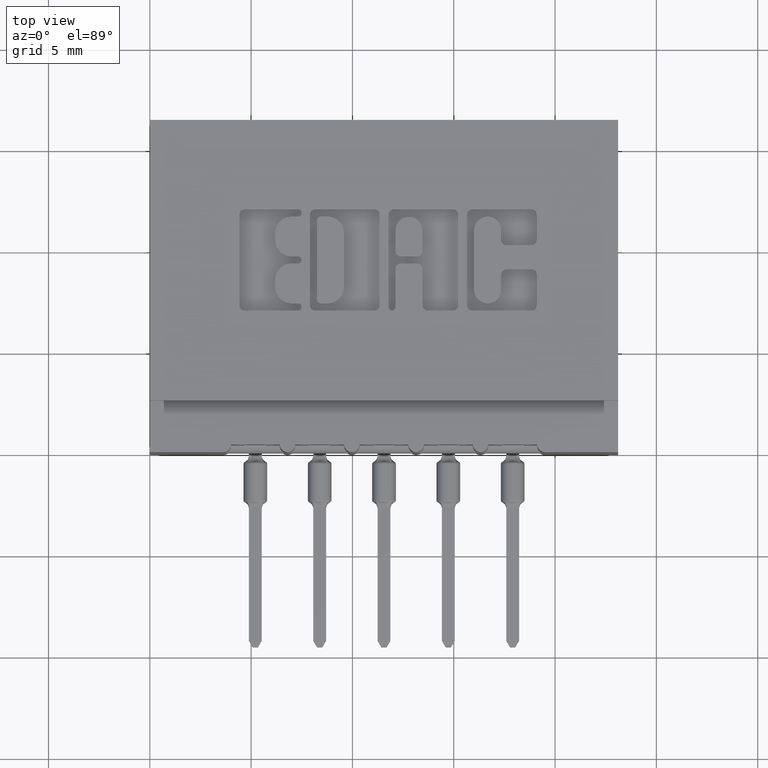
[diagram: clean part render]
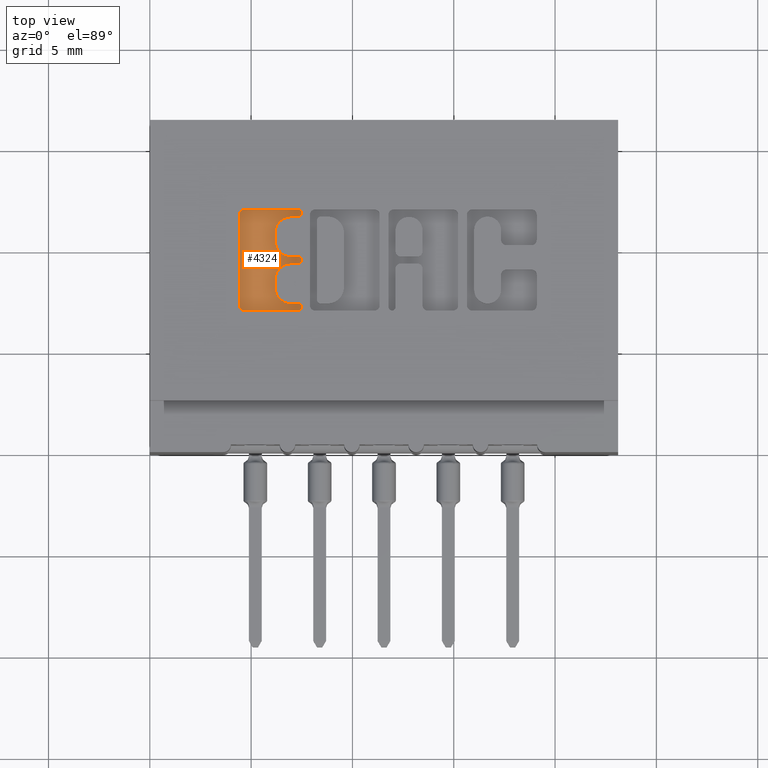
[diagram: same view with one face highlighted and labeled with its STEP entity id]
A machine part, top view. The second image highlights one B-rep face of the part: STEP entity #4324.
In plain terms, the highlighted planar face has unit normal (0, 0, 1).
Its self-contained STEP definition (entity closure, byte-faithful):
#16 = CARTESIAN_POINT ( 'NONE',  ( 0.0000000000000000000, 0.4706567020380327815, -0.01000000000000000021 ) ) ;
#152 = EDGE_CURVE ( 'NONE', #3041, #7016, #7688, .T. ) ;
#182 = CARTESIAN_POINT ( 'NONE',  ( 0.2881336065353097831, 0.3725000000000204259, -0.01000000000000000021 ) ) ;
#352 = CIRCLE ( 'NONE', #10477, 0.03141014465217447510 ) ;
#394 = VERTEX_POINT ( 'NONE', #11059 ) ;
#408 = ORIENTED_EDGE ( 'NONE', *, *, #5925, .F. ) ;
#496 = DIRECTION ( 'NONE',  ( -0.0000000000000000000, 0.0000000000000000000, 1.000000000000000000 ) ) ;
#539 = VERTEX_POINT ( 'NONE', #11903 ) ;
#549 = CARTESIAN_POINT ( 'NONE',  ( 0.1740264404161152301, 0.2841589681657900046, -0.01000000000000000021 ) ) ;
#610 = VERTEX_POINT ( 'NONE', #2982 ) ;
#663 = AXIS2_PLACEMENT_3D ( 'NONE', #11038, #7096, #2203 ) ;
#678 = CARTESIAN_POINT ( 'NONE',  ( 0.2746370600050838662, 0.3342188862052006271, -0.01000000000000000021 ) ) ;
#687 = DIRECTION ( 'NONE',  ( 1.000000000000000000, 0.0000000000000000000, 0.0000000000000000000 ) ) ;
#697 = VERTEX_POINT ( 'NONE', #6398 ) ;
#738 = ORIENTED_EDGE ( 'NONE', *, *, #1507, .T. ) ;
#773 = CIRCLE ( 'NONE', #6151, 0.006870969142662263288 ) ;
#864 = DIRECTION ( 'NONE',  ( 1.000000000000000000, 0.0000000000000000000, 0.0000000000000000000 ) ) ;
#1041 = CARTESIAN_POINT ( 'NONE',  ( -1.976217237646417414E-15, 0.2743432979619837009, -0.01000000000000000021 ) ) ;
#1113 = CARTESIAN_POINT ( 'NONE',  ( 0.0000000000000000000, 0.3793709691426839226, -0.01000000000000000021 ) ) ;
#1139 = CIRCLE ( 'NONE', #8355, 0.006870969142663527034 ) ;
#1247 = VERTEX_POINT ( 'NONE', #10300 ) ;
#1479 = CARTESIAN_POINT ( 'NONE',  ( 0.2881336065353512499, 0.4569147637527357642, -0.01000000000000000021 ) ) ;
#1507 = EDGE_CURVE ( 'NONE', #394, #9101, #1139, .T. ) ;
#1709 = VECTOR ( 'NONE', #7587, 39.37007874015748143 ) ;
#1759 = DIRECTION ( 'NONE',  ( 0.0000000000000000000, -1.000000000000000000, 0.0000000000000000000 ) ) ;
#1871 = CARTESIAN_POINT ( 'NONE',  ( 0.2881336065353097831, 0.3793709691426839226, -0.01000000000000000021 ) ) ;
#1877 = ORIENTED_EDGE ( 'NONE', *, *, #152, .F. ) ;
#2159 = VERTEX_POINT ( 'NONE', #9504 ) ;
#2177 = VERTEX_POINT ( 'NONE', #7478 ) ;
#2203 = DIRECTION ( 'NONE',  ( 1.000000000000000000, 0.0000000000000000000, 0.0000000000000000000 ) ) ;
#2218 = DIRECTION ( 'NONE',  ( 1.000000000000000000, 0.0000000000000000000, 0.0000000000000000000 ) ) ;
#2458 = CARTESIAN_POINT ( 'NONE',  ( 0.0000000000000000000, 0.4569147637527357642, -0.01000000000000000021 ) ) ;
#2472 = DIRECTION ( 'NONE',  ( -1.000000000000000000, 0.0000000000000000000, 0.0000000000000000000 ) ) ;
#2537 = VECTOR ( 'NONE', #1759, 39.37007874015748143 ) ;
#2627 = EDGE_CURVE ( 'NONE', #6132, #5334, #6648, .T. ) ;
#2717 = CARTESIAN_POINT ( 'NONE',  ( 0.1740264404161152301, 0.4608410318342101575, -0.01000000000000000021 ) ) ;
#2738 = DIRECTION ( 'NONE',  ( -0.0000000000000000000, 0.0000000000000000000, 1.000000000000000000 ) ) ;
#2882 = ORIENTED_EDGE ( 'NONE', *, *, #8352, .T. ) ;
#2883 = DIRECTION ( 'NONE',  ( -0.0000000000000000000, 0.0000000000000000000, 1.000000000000000000 ) ) ;
#2923 = CARTESIAN_POINT ( 'NONE',  ( 0.2881336065353353182, 0.2812142671046480302, -0.01000000000000000021 ) ) ;
#2982 = CARTESIAN_POINT ( 'NONE',  ( 0.1838421106199378818, 0.4706567020380327815, -0.01000000000000000021 ) ) ;
#3041 = VERTEX_POINT ( 'NONE', #3490 ) ;
#3120 = AXIS2_PLACEMENT_3D ( 'NONE', #5854, #7637, #864 ) ;
#3148 = ORIENTED_EDGE ( 'NONE', *, *, #4306, .T. ) ;
#3165 = PLANE ( 'NONE',  #663 ) ;
#3198 = EDGE_CURVE ( 'NONE', #9157, #6942, #7495, .T. ) ;
#3292 = CARTESIAN_POINT ( 'NONE',  ( 0.2881336065353511389, 0.4637857328953863267, -0.01000000000000000021 ) ) ;
#3384 = AXIS2_PLACEMENT_3D ( 'NONE', #8701, #2883, #6819 ) ;
#3446 = EDGE_CURVE ( 'NONE', #2177, #6847, #11290, .T. ) ;
#3465 = ORIENTED_EDGE ( 'NONE', *, *, #5048, .T. ) ;
#3490 = CARTESIAN_POINT ( 'NONE',  ( 0.2746370600051252775, 0.4569147637527357642, -0.01000000000000000021 ) ) ;
#3508 = EDGE_CURVE ( 'NONE', #5546, #610, #10940, .T. ) ;
#3753 = EDGE_CURVE ( 'NONE', #2159, #5334, #3886, .T. ) ;
#3758 = CIRCLE ( 'NONE', #6450, 0.006870969142663527034 ) ;
#3867 = CARTESIAN_POINT ( 'NONE',  ( 0.2950045756779733352, 0.3725000000000204259, -0.01000000000000000021 ) ) ;
#3872 = CARTESIAN_POINT ( 'NONE',  ( 0.2881336065353097831, 0.3725000000000204259, -0.01000000000000000021 ) ) ;
#3886 = LINE ( 'NONE', #10737, #8945 ) ;
#3933 = CIRCLE ( 'NONE', #3120, 0.03141014465218178175 ) ;
#3970 = VERTEX_POINT ( 'NONE', #6474 ) ;
#4090 = VERTEX_POINT ( 'NONE', #1871 ) ;
#4133 = DIRECTION ( 'NONE',  ( 1.000000000000000000, 0.0000000000000000000, 0.0000000000000000000 ) ) ;
#4190 = ORIENTED_EDGE ( 'NONE', *, *, #2627, .F. ) ;
#4250 = EDGE_CURVE ( 'NONE', #9391, #539, #12634, .T. ) ;
#4306 = EDGE_CURVE ( 'NONE', #9101, #4090, #3758, .T. ) ;
#4324 = ADVANCED_FACE ( 'NONE', ( #12024 ), #3165, .T. ) ;
#4350 = ORIENTED_EDGE ( 'NONE', *, *, #10889, .F. ) ;
#4423 = AXIS2_PLACEMENT_3D ( 'NONE', #6865, #2738, #6617 ) ;
#4499 = EDGE_CURVE ( 'NONE', #6132, #394, #5738, .T. ) ;
#4718 = CARTESIAN_POINT ( 'NONE',  ( 0.1838421106199378818, 0.4608410318342101575, -0.01000000000000000021 ) ) ;
#4719 = DIRECTION ( 'NONE',  ( 1.000000000000000000, 0.0000000000000000000, 0.0000000000000000000 ) ) ;
#4821 = AXIS2_PLACEMENT_3D ( 'NONE', #8281, #7112, #2218 ) ;
#4952 = CARTESIAN_POINT ( 'NONE',  ( 0.2746370600050838662, 0.3656290308573568737, -0.01000000000000000021 ) ) ;
#4986 = EDGE_CURVE ( 'NONE', #5031, #5493, #12256, .T. ) ;
#5031 = VERTEX_POINT ( 'NONE', #9203 ) ;
#5048 = EDGE_CURVE ( 'NONE', #539, #5546, #9372, .T. ) ;
#5069 = CARTESIAN_POINT ( 'NONE',  ( 0.2881336065353353182, 0.2812142671046480302, -0.01000000000000000021 ) ) ;
#5112 = ORIENTED_EDGE ( 'NONE', *, *, #4250, .T. ) ;
#5251 = AXIS2_PLACEMENT_3D ( 'NONE', #5069, #11766, #12757 ) ;
#5334 = VERTEX_POINT ( 'NONE', #11749 ) ;
#5352 = EDGE_CURVE ( 'NONE', #610, #9157, #11989, .T. ) ;
#5493 = VERTEX_POINT ( 'NONE', #8331 ) ;
#5497 = LINE ( 'NONE', #2458, #8866 ) ;
#5546 = VERTEX_POINT ( 'NONE', #6525 ) ;
#5658 = VECTOR ( 'NONE', #10535, 39.37007874015748143 ) ;
#5679 = CARTESIAN_POINT ( 'NONE',  ( 0.0000000000000000000, 0.3656290308573568737, -0.01000000000000000021 ) ) ;
#5709 = DIRECTION ( 'NONE',  ( 0.0000000000000000000, 1.000000000000000000, -0.0000000000000000000 ) ) ;
#5738 = LINE ( 'NONE', #5679, #1709 ) ;
#5854 = CARTESIAN_POINT ( 'NONE',  ( 0.2746370600051094013, 0.3194953808994904221, -0.01000000000000000021 ) ) ;
#5925 = EDGE_CURVE ( 'NONE', #2159, #6847, #3933, .T. ) ;
#5950 = DIRECTION ( 'NONE',  ( -0.0000000000000000000, 0.0000000000000000000, 1.000000000000000000 ) ) ;
#5979 = ORIENTED_EDGE ( 'NONE', *, *, #5352, .T. ) ;
#6125 = DIRECTION ( 'NONE',  ( 1.000000000000000000, 0.0000000000000000000, 0.0000000000000000000 ) ) ;
#6132 = VERTEX_POINT ( 'NONE', #4952 ) ;
#6150 = DIRECTION ( 'NONE',  ( 1.000000000000000000, 7.203446383881649836E-15, 0.0000000000000000000 ) ) ;
#6151 = AXIS2_PLACEMENT_3D ( 'NONE', #2923, #8944, #10739 ) ;
#6199 = DIRECTION ( 'NONE',  ( -0.0000000000000000000, 0.0000000000000000000, 1.000000000000000000 ) ) ;
#6396 = ORIENTED_EDGE ( 'NONE', *, *, #10558, .T. ) ;
#6398 = CARTESIAN_POINT ( 'NONE',  ( 0.2746370600050838662, 0.3793709691426839226, -0.01000000000000000021 ) ) ;
#6450 = AXIS2_PLACEMENT_3D ( 'NONE', #182, #6199, #4133 ) ;
#6474 = CARTESIAN_POINT ( 'NONE',  ( 0.2432269153529093841, 0.4107811137948584324, -0.01000000000000000021 ) ) ;
#6477 = AXIS2_PLACEMENT_3D ( 'NONE', #3292, #11957, #7217 ) ;
#6525 = CARTESIAN_POINT ( 'NONE',  ( 0.2881336065353511389, 0.4706567020380327815, -0.01000000000000000021 ) ) ;
#6617 = DIRECTION ( 'NONE',  ( 1.000000000000000000, 0.0000000000000000000, 0.0000000000000000000 ) ) ;
#6648 = CIRCLE ( 'NONE', #12630, 0.03141014465215623969 ) ;
#6819 = DIRECTION ( 'NONE',  ( 1.000000000000000000, 0.0000000000000000000, 0.0000000000000000000 ) ) ;
#6847 = VERTEX_POINT ( 'NONE', #10067 ) ;
#6865 = CARTESIAN_POINT ( 'NONE',  ( 0.2746370600051252775, 0.4255046191005198430, -0.01000000000000000021 ) ) ;
#6942 = VERTEX_POINT ( 'NONE', #549 ) ;
#6967 = DIRECTION ( 'NONE',  ( 1.000000000000000000, 0.0000000000000000000, 0.0000000000000000000 ) ) ;
#7016 = VERTEX_POINT ( 'NONE', #8318 ) ;
#7096 = DIRECTION ( 'NONE',  ( -0.0000000000000000000, 0.0000000000000000000, 1.000000000000000000 ) ) ;
#7112 = DIRECTION ( 'NONE',  ( -0.0000000000000000000, 0.0000000000000000000, 1.000000000000000000 ) ) ;
#7205 = ORIENTED_EDGE ( 'NONE', *, *, #3198, .T. ) ;
#7217 = DIRECTION ( 'NONE',  ( 1.000000000000000000, 0.0000000000000000000, 0.0000000000000000000 ) ) ;
#7352 = ORIENTED_EDGE ( 'NONE', *, *, #4499, .T. ) ;
#7428 = AXIS2_PLACEMENT_3D ( 'NONE', #4718, #8930, #6967 ) ;
#7478 = CARTESIAN_POINT ( 'NONE',  ( 0.2881336064154141896, 0.2880852362473102501, -0.01000000000000000021 ) ) ;
#7495 = LINE ( 'NONE', #10601, #2537 ) ;
#7587 = DIRECTION ( 'NONE',  ( 1.000000000000000000, 0.0000000000000000000, 0.0000000000000000000 ) ) ;
#7637 = DIRECTION ( 'NONE',  ( -0.0000000000000000000, 0.0000000000000000000, 1.000000000000000000 ) ) ;
#7688 = CIRCLE ( 'NONE', #4423, 0.03141014465221589336 ) ;
#7693 = EDGE_CURVE ( 'NONE', #1247, #5031, #9962, .T. ) ;
#7965 = EDGE_LOOP ( 'NONE', ( #1877, #6396, #5112, #3465, #10887, #5979, #7205, #2882, #10375, #11017, #10786, #11932, #408, #9110, #4190, #7352, #738, #3148, #12459, #4350, #11123 ) ) ;
#8281 = CARTESIAN_POINT ( 'NONE',  ( 0.2881336065353511389, 0.4637857328953863267, -0.01000000000000000021 ) ) ;
#8318 = CARTESIAN_POINT ( 'NONE',  ( 0.2432269153529093841, 0.4255046191005198430, -0.01000000000000000021 ) ) ;
#8331 = CARTESIAN_POINT ( 'NONE',  ( 0.2950045756779975936, 0.2812142671046480302, -0.01000000000000000021 ) ) ;
#8352 = EDGE_CURVE ( 'NONE', #6942, #1247, #10802, .T. ) ;
#8355 = AXIS2_PLACEMENT_3D ( 'NONE', #3872, #5950, #4719 ) ;
#8389 = DIRECTION ( 'NONE',  ( 1.000000000000000000, 0.0000000000000000000, 0.0000000000000000000 ) ) ;
#8701 = CARTESIAN_POINT ( 'NONE',  ( 0.1838421106199220334, 0.2841589681657900046, -0.01000000000000000021 ) ) ;
#8866 = VECTOR ( 'NONE', #687, 39.37007874015748143 ) ;
#8908 = EDGE_CURVE ( 'NONE', #4090, #697, #9263, .T. ) ;
#8910 = VECTOR ( 'NONE', #6150, 39.37007874015748143 ) ;
#8922 = EDGE_CURVE ( 'NONE', #3970, #7016, #11496, .T. ) ;
#8930 = DIRECTION ( 'NONE',  ( -0.0000000000000000000, 0.0000000000000000000, 1.000000000000000000 ) ) ;
#8944 = DIRECTION ( 'NONE',  ( -0.0000000000000000000, 0.0000000000000000000, 1.000000000000000000 ) ) ;
#8945 = VECTOR ( 'NONE', #5709, 39.37007874015748143 ) ;
#9101 = VERTEX_POINT ( 'NONE', #3867 ) ;
#9110 = ORIENTED_EDGE ( 'NONE', *, *, #3753, .T. ) ;
#9157 = VERTEX_POINT ( 'NONE', #2717 ) ;
#9203 = CARTESIAN_POINT ( 'NONE',  ( 0.2881336064154141896, 0.2743432979619857548, -0.01000000000000000021 ) ) ;
#9263 = LINE ( 'NONE', #1113, #9393 ) ;
#9372 = CIRCLE ( 'NONE', #4821, 0.006870969142648501726 ) ;
#9391 = VERTEX_POINT ( 'NONE', #1479 ) ;
#9393 = VECTOR ( 'NONE', #2472, 39.37007874015748143 ) ;
#9504 = CARTESIAN_POINT ( 'NONE',  ( 0.2432269153529276196, 0.3194953808994904221, -0.01000000000000000021 ) ) ;
#9574 = CARTESIAN_POINT ( 'NONE',  ( 0.2432269153529093841, 0.0000000000000000000, -0.01000000000000000021 ) ) ;
#9962 = LINE ( 'NONE', #1041, #8910 ) ;
#10067 = CARTESIAN_POINT ( 'NONE',  ( 0.2746370600051094013, 0.2880852362473086403, -0.01000000000000000021 ) ) ;
#10076 = DIRECTION ( 'NONE',  ( -1.000000000000000000, -1.189163988687022540E-13, 0.0000000000000000000 ) ) ;
#10131 = CARTESIAN_POINT ( 'NONE',  ( 0.2746370600050838662, 0.4107811137948584324, -0.01000000000000000021 ) ) ;
#10300 = CARTESIAN_POINT ( 'NONE',  ( 0.1838421106199183974, 0.2743432979619850332, -0.01000000000000000021 ) ) ;
#10375 = ORIENTED_EDGE ( 'NONE', *, *, #7693, .T. ) ;
#10477 = AXIS2_PLACEMENT_3D ( 'NONE', #10131, #10957, #6125 ) ;
#10535 = DIRECTION ( 'NONE',  ( 0.0000000000000000000, 1.000000000000000000, -0.0000000000000000000 ) ) ;
#10558 = EDGE_CURVE ( 'NONE', #3041, #9391, #5497, .T. ) ;
#10601 = CARTESIAN_POINT ( 'NONE',  ( 0.1740264404161152301, 0.0000000000000000000, -0.01000000000000000021 ) ) ;
#10737 = CARTESIAN_POINT ( 'NONE',  ( 0.2432269153529276196, 0.0000000000000000000, -0.01000000000000000021 ) ) ;
#10739 = DIRECTION ( 'NONE',  ( 1.000000000000000000, 0.0000000000000000000, 0.0000000000000000000 ) ) ;
#10786 = ORIENTED_EDGE ( 'NONE', *, *, #11414, .T. ) ;
#10802 = CIRCLE ( 'NONE', #3384, 0.009815670203805868313 ) ;
#10887 = ORIENTED_EDGE ( 'NONE', *, *, #3508, .T. ) ;
#10889 = EDGE_CURVE ( 'NONE', #3970, #697, #352, .T. ) ;
#10940 = LINE ( 'NONE', #16, #12646 ) ;
#10957 = DIRECTION ( 'NONE',  ( -0.0000000000000000000, 0.0000000000000000000, 1.000000000000000000 ) ) ;
#10984 = VECTOR ( 'NONE', #10076, 39.37007874015748143 ) ;
#11017 = ORIENTED_EDGE ( 'NONE', *, *, #4986, .T. ) ;
#11036 = CARTESIAN_POINT ( 'NONE',  ( -3.425805886176539792E-14, 0.2880852362472759998, -0.01000000000000000021 ) ) ;
#11038 = CARTESIAN_POINT ( 'NONE',  ( 0.0000000000000000000, 0.0000000000000000000, -0.01000000000000000021 ) ) ;
#11059 = CARTESIAN_POINT ( 'NONE',  ( 0.2881336064153887100, 0.3656290308573568737, -0.01000000000000000021 ) ) ;
#11123 = ORIENTED_EDGE ( 'NONE', *, *, #8922, .T. ) ;
#11290 = LINE ( 'NONE', #11036, #10984 ) ;
#11414 = EDGE_CURVE ( 'NONE', #5493, #2177, #773, .T. ) ;
#11496 = LINE ( 'NONE', #9574, #5658 ) ;
#11749 = CARTESIAN_POINT ( 'NONE',  ( 0.2432269153529276196, 0.3342188862052006271, -0.01000000000000000021 ) ) ;
#11766 = DIRECTION ( 'NONE',  ( -0.0000000000000000000, 0.0000000000000000000, 1.000000000000000000 ) ) ;
#11857 = DIRECTION ( 'NONE',  ( -1.000000000000000000, 0.0000000000000000000, 0.0000000000000000000 ) ) ;
#11903 = CARTESIAN_POINT ( 'NONE',  ( 0.2950045756779996475, 0.4637857328953863267, -0.01000000000000000021 ) ) ;
#11932 = ORIENTED_EDGE ( 'NONE', *, *, #3446, .T. ) ;
#11957 = DIRECTION ( 'NONE',  ( -0.0000000000000000000, 0.0000000000000000000, 1.000000000000000000 ) ) ;
#11989 = CIRCLE ( 'NONE', #7428, 0.009815670203822599721 ) ;
#12024 = FACE_OUTER_BOUND ( 'NONE', #7965, .T. ) ;
#12256 = CIRCLE ( 'NONE', #5251, 0.006870969142662263288 ) ;
#12459 = ORIENTED_EDGE ( 'NONE', *, *, #8908, .T. ) ;
#12630 = AXIS2_PLACEMENT_3D ( 'NONE', #678, #496, #8389 ) ;
#12634 = CIRCLE ( 'NONE', #6477, 0.006870969142648501726 ) ;
#12646 = VECTOR ( 'NONE', #11857, 39.37007874015748143 ) ;
#12757 = DIRECTION ( 'NONE',  ( 1.000000000000000000, 0.0000000000000000000, 0.0000000000000000000 ) ) ;